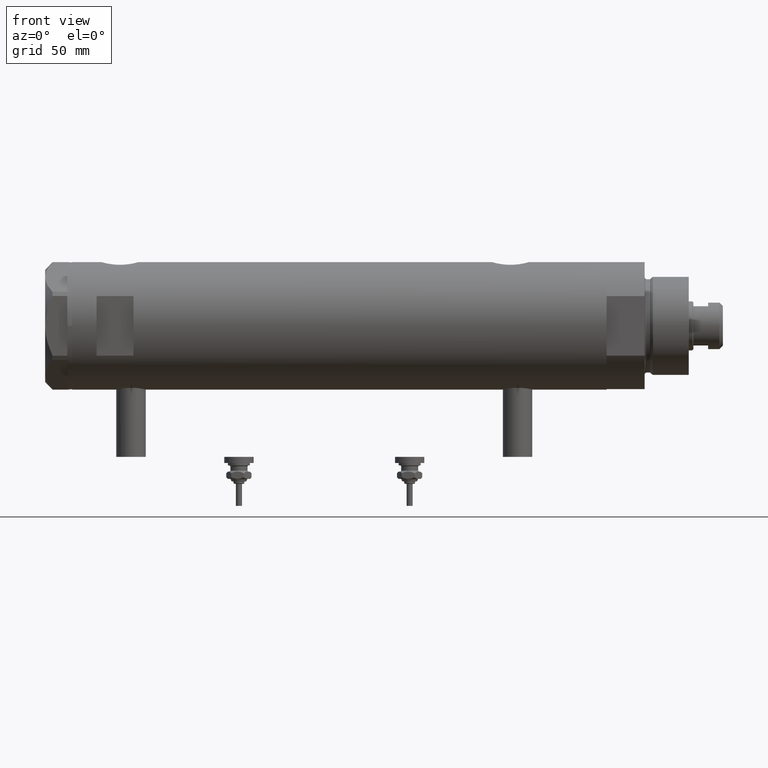
[diagram: clean part render]
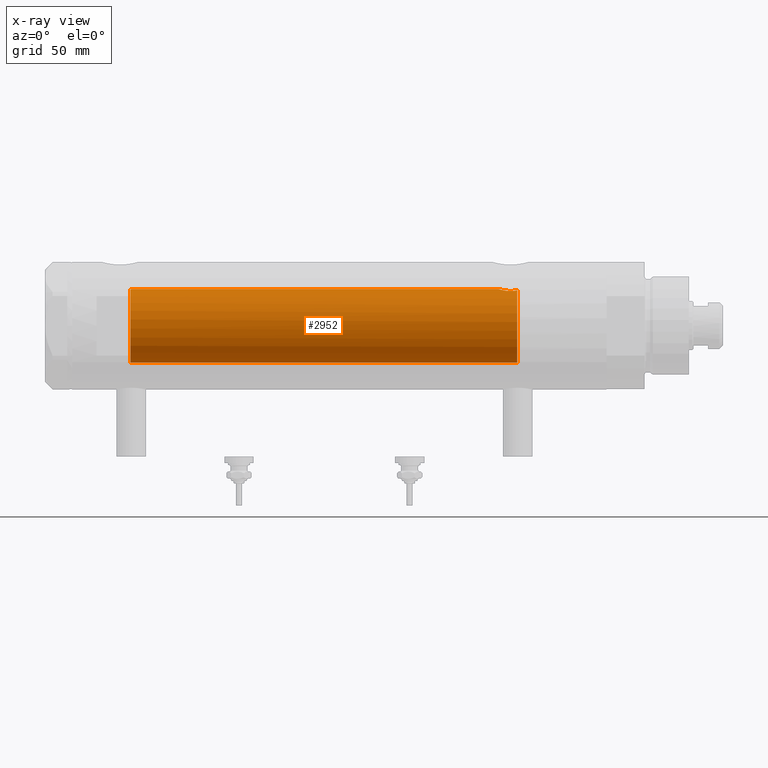
[diagram: x-ray — body ghosted, one internal face saturated and labeled with its STEP entity id]
A machine part, front view, then the same camera in x-ray: the body is ghosted and one INTERNAL B-rep face — a face not visible from any outside direction — is saturated and labeled: STEP entity #2952.
In plain terms, the highlighted cylindrical surface (partial cylindrical patch) has radius 15 mm, axis along (1, 0, -0).
Its self-contained STEP definition (entity closure, byte-faithful):
#107 = CARTESIAN_POINT ( 'NONE',  ( 14.33349657381506148, -4.422893686125038748, -71.78827841538880250 ) ) ;
#133 = B_SPLINE_CURVE_WITH_KNOTS ( 'NONE', 3,
 ( #715, #2650, #1697, #107, #5956, #683, #1635, #4132, #1168, #5511, #3104, #2080, #205, #5448, #5479, #1105, #1073, #2047, #5986, #4031, #587, #1605, #2526, #174, #3557, #2115, #3133, #3004, #4965, #1137 ),
 .UNSPECIFIED., .F., .F.,
 ( 4, 2, 2, 2, 2, 2, 2, 2, 2, 2, 2, 2, 2, 2, 4 ),
 ( 0.004672505804584295430, 0.005337629501999315365, 0.006002753199414335300, 0.006667876896829355235, 0.007333000594244375170, 0.007998124291659395105, 0.008663247989074415040, 0.009328371686489433240, 0.009993495383904454910, 0.01132374277873445662, 0.01265399017356445832, 0.01331911387097945050, 0.01398423756839444268, 0.01464936126580943312, 0.01531448496322442530 ),
 .UNSPECIFIED. ) ;
#174 = CARTESIAN_POINT ( 'NONE',  ( 14.90017778876745247, -1.739641523727897710, -65.20130925695124802 ) ) ;
#182 = FACE_OUTER_BOUND ( 'NONE', #183, .T. ) ;
#183 = EDGE_LOOP ( 'NONE', ( #1232, #3100, #5038, #5360, #5819, #3483 ) ) ;
#205 = CARTESIAN_POINT ( 'NONE',  ( 14.20926245015525957, -4.806160851464704287, -68.96377327795615031 ) ) ;
#239 = CARTESIAN_POINT ( 'NONE',  ( 14.93900636919600089, -1.364886281976675164, 84.77622504971311912 ) ) ;
#321 = CARTESIAN_POINT ( 'NONE',  ( -15.00000000000000000, 0.000000000000000000, 108.9499999999999886 ) ) ;
#504 = CARTESIAN_POINT ( 'NONE',  ( -15.00000000000000000, 0.000000000000000000, -72.54999999999999716 ) ) ;
#587 = CARTESIAN_POINT ( 'NONE',  ( 14.72015646623406049, -2.909233045280597896, -65.82572079632734585 ) ) ;
#659 = LINE ( 'NONE', #5924, #5233 ) ;
#683 = CARTESIAN_POINT ( 'NONE',  ( 14.25856516724843637, -4.658255869285517825, -71.17044016644935311 ) ) ;
#715 = CARTESIAN_POINT ( 'NONE',  ( 14.46277203719950855, -3.978470183374511304, -72.54999999999999716 ) ) ;
#824 = DIRECTION ( 'NONE',  ( -0.000000000000000000, -0.000000000000000000, -1.000000000000000000 ) ) ;
#1020 = CARTESIAN_POINT ( 'NONE',  ( 15.00000000000000000, 0.000000000000000000, 84.58500000000000796 ) ) ;
#1070 = DIRECTION ( 'NONE',  ( 0.000000000000000000, 0.000000000000000000, -1.000000000000000000 ) ) ;
#1073 = CARTESIAN_POINT ( 'NONE',  ( 14.33594561531104006, -4.414979644548150617, -67.69453393419244946 ) ) ;
#1105 = CARTESIAN_POINT ( 'NONE',  ( 14.30772250772360366, -4.505024017690372418, -67.90010806953213773 ) ) ;
#1134 = CARTESIAN_POINT ( 'NONE',  ( 0.000000000000000000, 0.000000000000000000, -72.54999999999999716 ) ) ;
#1137 = CARTESIAN_POINT ( 'NONE',  ( 15.00000000000000000, 5.959273473684245944E-16, -64.88500000000000512 ) ) ;
#1168 = CARTESIAN_POINT ( 'NONE',  ( 14.19797987272029793, -4.839174951492910992, -70.29741451501413962 ) ) ;
#1232 = ORIENTED_EDGE ( 'NONE', *, *, #3621, .F. ) ;
#1605 = CARTESIAN_POINT ( 'NONE',  ( 14.81710879718118079, -2.343063746046463613, -65.48067662538953471 ) ) ;
#1613 = DIRECTION ( 'NONE',  ( 0.000000000000000000, 0.000000000000000000, 1.000000000000000000 ) ) ;
#1635 = CARTESIAN_POINT ( 'NONE',  ( 14.23846660849503110, -4.718934182878724570, -70.95401121469809880 ) ) ;
#1644 = DIRECTION ( 'NONE',  ( -1.000000000000000000, 0.000000000000000000, 0.000000000000000000 ) ) ;
#1697 = CARTESIAN_POINT ( 'NONE',  ( 14.39424372609267877, -4.221002267729139668, -72.17893131093291004 ) ) ;
#1782 = EDGE_CURVE ( 'NONE', #6214, #5019, #659, .T. ) ;
#1883 = CARTESIAN_POINT ( 'NONE',  ( 14.87720562886503828, -1.924385875533404233, 84.97741675737692901 ) ) ;
#2012 = CIRCLE ( 'NONE', #4162, 15.00000000000000000 ) ;
#2047 = CARTESIAN_POINT ( 'NONE',  ( 14.42796883436190392, -4.108435602805834641, -67.10726922759032220 ) ) ;
#2080 = CARTESIAN_POINT ( 'NONE',  ( 14.19858338301463085, -4.837406781463694294, -69.18614104090498529 ) ) ;
#2115 = CARTESIAN_POINT ( 'NONE',  ( 14.96064712090283955, -1.106639041422192049, -65.00738179736373468 ) ) ;
#2122 = CYLINDRICAL_SURFACE ( 'NONE', #3935, 15.00000000000000000 ) ;
#2408 = EDGE_CURVE ( 'NONE', #5119, #2851, #5713, .T. ) ;
#2526 = CARTESIAN_POINT ( 'NONE',  ( 14.84733308118440398, -2.144376633039211999, -65.37751912952717248 ) ) ;
#2601 = CARTESIAN_POINT ( 'NONE',  ( 0.000000000000000000, 0.000000000000000000, 85.15000000000000568 ) ) ;
#2648 = CARTESIAN_POINT ( 'NONE',  ( 15.00000000000000711, -0.3999014018875933218, 84.58500000000002217 ) ) ;
#2650 = CARTESIAN_POINT ( 'NONE',  ( 14.42775250319759728, -4.105775281508738495, -72.36911445102909113 ) ) ;
#2684 = CARTESIAN_POINT ( 'NONE',  ( 14.92029983160078288, -1.555365312915180320, 84.83609703141412695 ) ) ;
#2742 = VERTEX_POINT ( 'NONE', #3787 ) ;
#2775 = CARTESIAN_POINT ( 'NONE',  ( 15.00000000000000000, 0.000000000000000000, 84.58500000000000796 ) ) ;
#2851 = VERTEX_POINT ( 'NONE', #504 ) ;
#2930 = CARTESIAN_POINT ( 'NONE',  ( 14.82638779339053947, -2.275571356824482638, 85.15000000000000568 ) ) ;
#2952 = ADVANCED_FACE ( 'NONE', ( #182 ), #2122, .F. ) ;
#3004 = CARTESIAN_POINT ( 'NONE',  ( 14.99508877558422881, -0.4434836953032569862, -64.90007684727665094 ) ) ;
#3100 = ORIENTED_EDGE ( 'NONE', *, *, #1782, .T. ) ;
#3104 = CARTESIAN_POINT ( 'NONE',  ( 14.18786347641750112, -4.868757996482119488, -69.63322300400297138 ) ) ;
#3133 = CARTESIAN_POINT ( 'NONE',  ( 14.97537530859972321, -0.8874117095427768165, -64.96137464055831856 ) ) ;
#3483 = ORIENTED_EDGE ( 'NONE', *, *, #6277, .T. ) ;
#3514 = CARTESIAN_POINT ( 'NONE',  ( 14.82638779339053947, -2.275571356824482638, 85.15000000000000568 ) ) ;
#3557 = CARTESIAN_POINT ( 'NONE',  ( 14.92307637240704032, -1.532123959568890692, -65.12726557582080034 ) ) ;
#3588 = CARTESIAN_POINT ( 'NONE',  ( 15.00000000000000000, 5.959273473684245944E-16, -64.88500000000000512 ) ) ;
#3599 = DIRECTION ( 'NONE',  ( -0.000000000000000000, -0.000000000000000000, -1.000000000000000000 ) ) ;
#3615 = DIRECTION ( 'NONE',  ( -1.000000000000000000, 0.000000000000000000, 0.000000000000000000 ) ) ;
#3621 = EDGE_CURVE ( 'NONE', #6214, #3778, #6162, .T. ) ;
#3778 = VERTEX_POINT ( 'NONE', #3514 ) ;
#3787 = CARTESIAN_POINT ( 'NONE',  ( 14.46277203719950855, -3.978470183374511304, -72.54999999999999716 ) ) ;
#3935 = AXIS2_PLACEMENT_3D ( 'NONE', #4038, #3599, #1644 ) ;
#4031 = CARTESIAN_POINT ( 'NONE',  ( 14.64727859494137263, -3.248701865452405801, -66.10174013696655493 ) ) ;
#4038 = CARTESIAN_POINT ( 'NONE',  ( 0.000000000000000000, 0.000000000000000000, 108.9499999999999886 ) ) ;
#4132 = CARTESIAN_POINT ( 'NONE',  ( 14.20819413761016037, -4.809312895991457282, -70.51713251522167525 ) ) ;
#4162 = AXIS2_PLACEMENT_3D ( 'NONE', #1134, #1070, #3615 ) ;
#4206 = CIRCLE ( 'NONE', #6249, 15.00000000000000000 ) ;
#4375 = CARTESIAN_POINT ( 'NONE',  ( 14.85289483991916981, -2.102865829523694163, 85.05860377881604961 ) ) ;
#4476 = CARTESIAN_POINT ( 'NONE',  ( -15.00000000000000000, 0.000000000000000000, 85.15000000000000568 ) ) ;
#4516 = EDGE_CURVE ( 'NONE', #2742, #5019, #133, .T. ) ;
#4551 = DIRECTION ( 'NONE',  ( -0.000000000000000000, -0.000000000000000000, -1.000000000000000000 ) ) ;
#4614 = CARTESIAN_POINT ( 'NONE',  ( 14.98404828787190901, -0.7909490205761859904, 84.63356230794190083 ) ) ;
#4835 = VECTOR ( 'NONE', #824, 1000.000000000000000 ) ;
#4965 = CARTESIAN_POINT ( 'NONE',  ( 15.00000000000000888, -0.2216692655473423146, -64.88500000000003354 ) ) ;
#5019 = VERTEX_POINT ( 'NONE', #3588 ) ;
#5038 = ORIENTED_EDGE ( 'NONE', *, *, #4516, .F. ) ;
#5103 = EDGE_CURVE ( 'NONE', #2742, #2851, #2012, .T. ) ;
#5119 = VERTEX_POINT ( 'NONE', #4476 ) ;
#5233 = VECTOR ( 'NONE', #4551, 1000.000000000000000 ) ;
#5360 = ORIENTED_EDGE ( 'NONE', *, *, #5103, .T. ) ;
#5423 = DIRECTION ( 'NONE',  ( 1.000000000000000000, 0.000000000000000000, 0.000000000000000000 ) ) ;
#5448 = CARTESIAN_POINT ( 'NONE',  ( 14.23984499268011561, -4.714778477509576682, -68.53008258614765680 ) ) ;
#5479 = CARTESIAN_POINT ( 'NONE',  ( 14.25977760983849763, -4.654557688538883298, -68.31736805897654108 ) ) ;
#5511 = CARTESIAN_POINT ( 'NONE',  ( 14.18781489734108270, -4.868896704194244585, -69.85545969036061820 ) ) ;
#5713 = LINE ( 'NONE', #321, #4835 ) ;
#5819 = ORIENTED_EDGE ( 'NONE', *, *, #2408, .F. ) ;
#5924 = CARTESIAN_POINT ( 'NONE',  ( 15.00000000000000000, 1.836970198721029589E-15, 108.9499999999999886 ) ) ;
#5956 = CARTESIAN_POINT ( 'NONE',  ( 14.30602371879160728, -4.510400617436905790, -71.58665028800270136 ) ) ;
#5986 = CARTESIAN_POINT ( 'NONE',  ( 14.49994286062941384, -3.853373987417223034, -66.74743896782911179 ) ) ;
#6162 = B_SPLINE_CURVE_WITH_KNOTS ( 'NONE', 3,
 ( #2775, #2648, #4614, #239, #2684, #1883, #4375, #2930 ),
 .UNSPECIFIED., .F., .F.,
 ( 4, 2, 2, 4 ),
 ( 0.000000000000000000, 0.001182100180564269864, 0.001773150270846399592, 0.002364200361128529319 ),
 .UNSPECIFIED. ) ;
#6214 = VERTEX_POINT ( 'NONE', #1020 ) ;
#6249 = AXIS2_PLACEMENT_3D ( 'NONE', #2601, #1613, #5423 ) ;
#6277 = EDGE_CURVE ( 'NONE', #5119, #3778, #4206, .T. ) ;